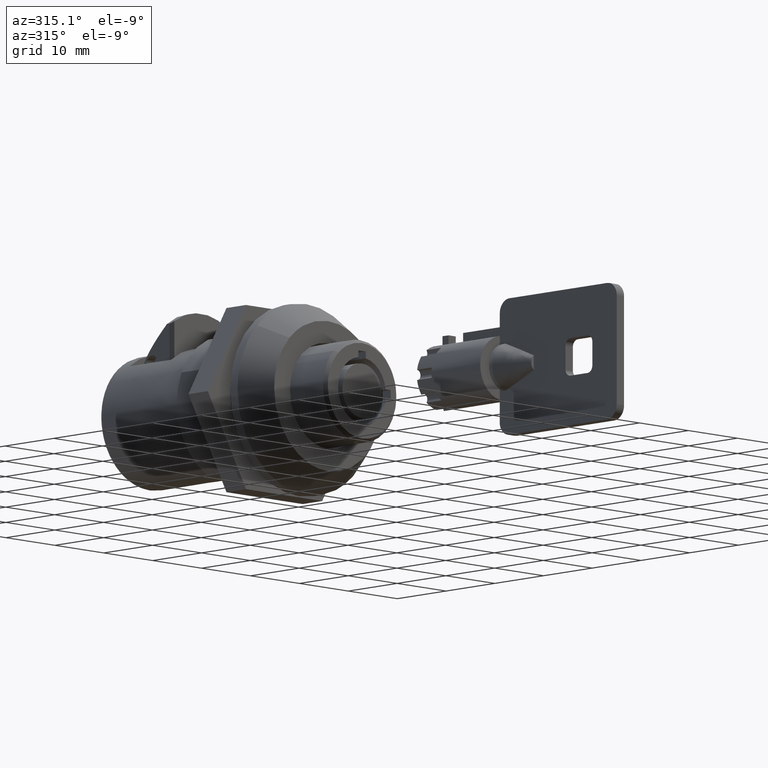
[diagram: clean part render]
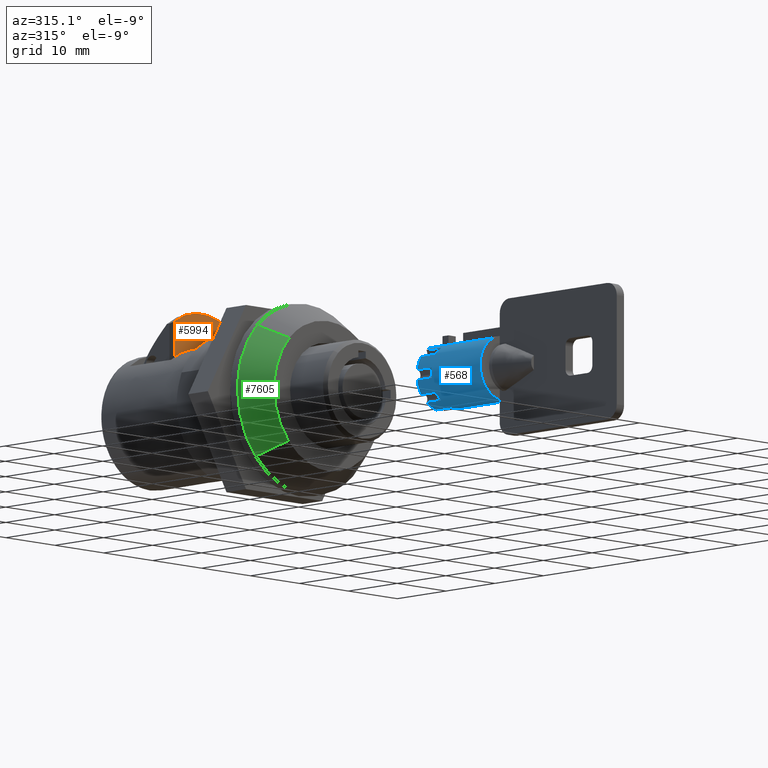
[diagram: same view with three faces highlighted in distinct colors, each labeled with its STEP entity id]
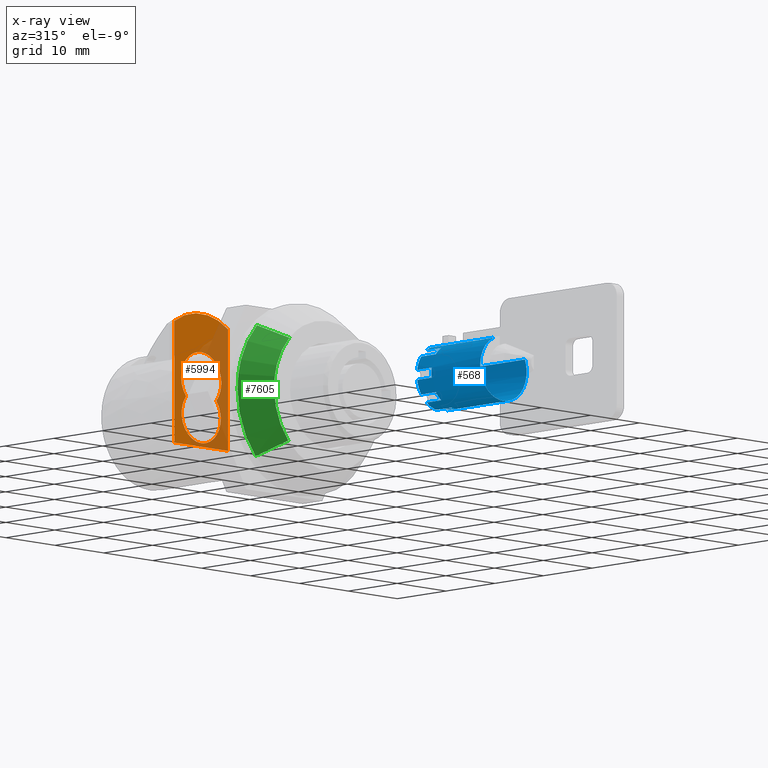
[diagram: x-ray of the same camera — body ghosted, the three highlighted faces saturated]
A machine part, auxiliary view with three faces highlighted in distinct colors.
The next image is the same camera in x-ray (body ghosted, the three faces saturated) — at least one of them is partly hidden behind the body in this view.
Their STEP definitions:

[orange] entity #5994 — the highlighted face is a freeform B-spline surface patch.
#3525=CARTESIAN_POINT('',(20.000000000008079,-4.059067700204118,4.664007475797704));
#3526=VERTEX_POINT('',#3525);
#3527=CARTESIAN_POINT('',(20.0,-3.084624964136685,2.546583756844490));
#3528=VERTEX_POINT('',#3527);
#3529=CARTESIAN_POINT('',(20.000000000008079,-4.059067700204118,4.664007475797704));
#3530=CARTESIAN_POINT('',(20.000000000006938,-4.006518445684709,4.298450837290671));
#3531=CARTESIAN_POINT('',(20.000000000004398,-3.787993506717510,3.534047687366308));
#3532=CARTESIAN_POINT('',(20.000000000001510,-3.360616583828423,2.861238851095451));
#3533=CARTESIAN_POINT('',(20.0,-3.084624964136685,2.546583756844490));
#3534=B_SPLINE_CURVE_WITH_KNOTS('',3,(#3529,#3530,#3531,#3532,#3533),.UNSPECIFIED.,.F.,.U.,(4,1,4),(0.000000061713878,1.107925928226118,2.363505146299601),.UNSPECIFIED.);
#3535=EDGE_CURVE('',#3526,#3528,#3534,.T.);
#3594=CARTESIAN_POINT('',(20.0,-2.834937529812149,8.211491115401401));
#3595=VERTEX_POINT('',#3594);
#3601=CARTESIAN_POINT('',(20.0,-0.001722810071820,9.348623928825074));
#3602=VERTEX_POINT('',#3601);
#3603=CARTESIAN_POINT('',(20.0,-0.001722810071820,9.348623928825074));
#3604=CARTESIAN_POINT('',(20.0,-0.555758693512724,9.349161258835824));
#3605=CARTESIAN_POINT('',(20.000000000000011,-1.597897432067037,9.133540506177619));
#3606=CARTESIAN_POINT('',(19.999999999999989,-2.481913399508175,8.549632453860577));
#3607=CARTESIAN_POINT('',(20.0,-2.834937529812149,8.211491115401401));
#3608=B_SPLINE_CURVE_WITH_KNOTS('',3,(#3603,#3604,#3605,#3606,#3607),.UNSPECIFIED.,.F.,.U.,(4,1,4),(0.000000119670092,1.661875428375270,3.128298061002914),.UNSPECIFIED.);
#3609=EDGE_CURVE('',#3602,#3595,#3608,.T.);
#3611=CARTESIAN_POINT('',(20.0,3.083691446851095,2.547714085335480));
#3612=VERTEX_POINT('',#3611);
#3613=CARTESIAN_POINT('',(20.0,3.083691446851095,2.547714085335480));
#3614=CARTESIAN_POINT('',(20.0,3.325388381986121,2.823605911143285));
#3615=CARTESIAN_POINT('',(19.999999999999972,3.734003285499123,3.440783314589810));
#3616=CARTESIAN_POINT('',(20.000000000000021,4.064362233551162,4.449005191029077));
#3617=CARTESIAN_POINT('',(19.999999999999972,4.126024913806971,5.382456505010598));
#3618=CARTESIAN_POINT('',(20.000000000000050,3.982769741961369,6.403584288525997));
#3619=CARTESIAN_POINT('',(19.999999999999918,3.539410604054659,7.454991706989893));
#3620=CARTESIAN_POINT('',(20.0,2.641144872643446,8.476919370692055));
#3621=CARTESIAN_POINT('',(20.000000000000028,1.440779027249715,9.176289401769926));
#3622=CARTESIAN_POINT('',(19.999999999999890,0.487345570169842,9.349069575095850));
#3623=CARTESIAN_POINT('',(20.0,-0.001722810071820,9.348623928825074));
#3624=B_SPLINE_CURVE_WITH_KNOTS('',3,(#3613,#3614,#3615,#3616,#3617,#3618,#3619,#3620,#3621,#3622,#3623),.UNSPECIFIED.,.F.,.U.,(4,1,1,1,1,1,1,1,4),(0.000000924180883,1.100357205743284,2.200718093231213,3.154425475815215,3.887967226812574,5.281615482665549,6.528774306501804,7.922647305842653,9.389737657902042),.UNSPECIFIED.);
#3625=EDGE_CURVE('',#3612,#3602,#3624,.T.);
#3655=CARTESIAN_POINT('',(20.0,-2.834937529812149,8.211491115401401));
#3656=CARTESIAN_POINT('',(20.000000000001450,-3.275919475598765,7.791086441758169));
#3657=CARTESIAN_POINT('',(20.000000000003819,-3.802817669776910,6.992227120761938));
#3658=CARTESIAN_POINT('',(20.000000000006281,-4.117604811932492,5.722066406708130));
#3659=CARTESIAN_POINT('',(20.000000000007681,-4.111291728674690,5.025698033227866));
#3660=CARTESIAN_POINT('',(20.000000000008079,-4.059067700204118,4.664007475797704));
#3661=B_SPLINE_CURVE_WITH_KNOTS('',3,(#3655,#3656,#3657,#3658,#3659,#3660),.UNSPECIFIED.,.F.,.U.,(4,1,1,4),(0.000000184069394,1.827232484496721,2.801712799471384,3.898039169611026),.UNSPECIFIED.);
#3662=EDGE_CURVE('',#3595,#3526,#3661,.T.);
#3709=CARTESIAN_POINT('',(20.000000000019160,-3.259185341339177,-2.318989200233620));
#3710=VERTEX_POINT('',#3709);
#3711=CARTESIAN_POINT('',(20.0,-3.084624964136685,2.546583756844490));
#3712=CARTESIAN_POINT('',(20.000000000002419,-3.397368393411713,2.168392273333283));
#3713=CARTESIAN_POINT('',(20.000000000006921,-3.840324424168417,1.367858538956685));
#3714=CARTESIAN_POINT('',(20.000000000012712,-4.067487936679370,0.035472125699857));
#3715=CARTESIAN_POINT('',(20.000000000016978,-3.879753495897507,-1.221512854584257));
#3716=CARTESIAN_POINT('',(20.000000000018531,-3.496392656802305,-1.985879951677433));
#3717=CARTESIAN_POINT('',(20.000000000019160,-3.259185341339177,-2.318989200233620));
#3718=B_SPLINE_CURVE_WITH_KNOTS('',3,(#3711,#3712,#3713,#3714,#3715,#3716,#3717),.UNSPECIFIED.,.F.,.U.,(4,1,1,1,4),(0.000000401513548,1.472165256970169,2.698865304195949,4.007536470345093,5.234329321358044),.UNSPECIFIED.);
#3719=EDGE_CURVE('',#3528,#3710,#3718,.T.);
#3733=CARTESIAN_POINT('',(20.0,2.679797957906777,-2.969626728193181));
#3734=VERTEX_POINT('',#3733);
#3735=CARTESIAN_POINT('',(20.0,2.679797957906777,-2.969626728193181));
#3736=CARTESIAN_POINT('',(19.999999999999979,2.916022212787964,-2.756515265710290));
#3737=CARTESIAN_POINT('',(19.999999999999961,3.379468010489344,-2.225275000254970));
#3738=CARTESIAN_POINT('',(20.000000000000060,3.888062148983860,-1.185852280281417));
#3739=CARTESIAN_POINT('',(20.000000000000028,4.050739661647715,-0.068508220358955));
#3740=CARTESIAN_POINT('',(19.999999999999869,3.876785133534348,1.264309133581721));
#3741=CARTESIAN_POINT('',(20.000000000000110,3.469716037481187,2.082180569764871));
#3742=CARTESIAN_POINT('',(20.0,3.083691446851095,2.547714085335480));
#3743=B_SPLINE_CURVE_WITH_KNOTS('',3,(#3735,#3736,#3737,#3738,#3739,#3740,#3741,#3742),.UNSPECIFIED.,.F.,.U.,(4,1,1,1,1,4),(0.000000500625762,0.954489386207447,2.099937426001804,3.436174874064488,4.295229988086652,6.108797276253971),.UNSPECIFIED.);
#3744=EDGE_CURVE('',#3734,#3612,#3743,.T.);
#3827=CARTESIAN_POINT('',(20.0,0.000740766560139,-3.999999931408227));
#3828=VERTEX_POINT('',#3827);
#3829=CARTESIAN_POINT('',(20.000000000019160,-3.259185341339177,-2.318989200233620));
#3830=CARTESIAN_POINT('',(20.000000000017391,-2.960435416880810,-2.739814375605717));
#3831=CARTESIAN_POINT('',(20.000000000013781,-2.343698524126548,-3.323344595747456));
#3832=CARTESIAN_POINT('',(20.000000000007010,-1.189838210157855,-3.875502243712609));
#3833=CARTESIAN_POINT('',(20.000000000002551,-0.435883778516267,-4.000315248254997));
#3834=CARTESIAN_POINT('',(20.0,0.000740766560139,-3.999999931408227));
#3835=B_SPLINE_CURVE_WITH_KNOTS('',3,(#3829,#3830,#3831,#3832,#3833,#3834),.UNSPECIFIED.,.F.,.U.,(4,1,1,4),(0.000000181313491,1.548012916949311,2.500546169509617,3.810392633242685),.UNSPECIFIED.);
#3836=EDGE_CURVE('',#3710,#3828,#3835,.T.);
#3860=CARTESIAN_POINT('',(20.0,0.000740766560139,-3.999999931408227));
#3861=CARTESIAN_POINT('',(20.000000000000028,0.459516786573455,-4.000235146860546));
#3862=CARTESIAN_POINT('',(19.999999999999950,1.437830459139048,-3.829418216854595));
#3863=CARTESIAN_POINT('',(20.000000000000021,2.294163984317915,-3.318407610304834));
#3864=CARTESIAN_POINT('',(20.0,2.679797957906777,-2.969626728193181));
#3865=B_SPLINE_CURVE_WITH_KNOTS('',3,(#3860,#3861,#3862,#3863,#3864),.UNSPECIFIED.,.F.,.U.,(4,1,4),(0.000000125273923,1.376235907093768,2.935886568220497),.UNSPECIFIED.);
#3866=EDGE_CURVE('',#3828,#3734,#3865,.T.);
#5271=CARTESIAN_POINT('',(20.0,-5.500961797166339,13.299245093504281));
#5272=VERTEX_POINT('',#5271);
#5280=CARTESIAN_POINT('',(20.0,-5.500961797166211,-4.501376000548020));
#5281=VERTEX_POINT('',#5280);
#5282=CARTESIAN_POINT('',(20.0,-5.500961797166211,-4.501376000548020));
#5283=CARTESIAN_POINT('',(20.0,-5.500961797166339,13.299245093504281));
#5284=QUASI_UNIFORM_CURVE('',1,(#5282,#5283),.UNSPECIFIED.,.F.,.U.);
#5285=EDGE_CURVE('',#5281,#5272,#5284,.T.);
#5307=CARTESIAN_POINT('',(20.0,5.500961797166211,-4.501376000548020));
#5308=VERTEX_POINT('',#5307);
#5316=CARTESIAN_POINT('',(20.0,5.500961797166330,13.297930600776439));
#5317=VERTEX_POINT('',#5316);
#5318=CARTESIAN_POINT('',(20.0,5.500961797166330,13.297930600776439));
#5319=CARTESIAN_POINT('',(20.0,5.500961797166211,-4.501376000548020));
#5320=QUASI_UNIFORM_CURVE('',1,(#5318,#5319),.UNSPECIFIED.,.F.,.U.);
#5321=EDGE_CURVE('',#5317,#5308,#5320,.T.);
#5534=CARTESIAN_POINT('',(20.0,5.500961797166211,-4.501376000548020));
#5535=CARTESIAN_POINT('',(20.0,-5.500961797166211,-4.501376000548020));
#5536=QUASI_UNIFORM_CURVE('',1,(#5534,#5535),.UNSPECIFIED.,.F.,.U.);
#5537=EDGE_CURVE('',#5308,#5281,#5536,.T.);
#5912=CARTESIAN_POINT('',(20.0,5.500961797166330,13.297930600776439));
#5913=CARTESIAN_POINT('',(20.0,4.546355236707845,13.951542444434830));
#5914=CARTESIAN_POINT('',(20.000000000000028,2.796364924966232,14.734688976954640));
#5915=CARTESIAN_POINT('',(19.999999999999989,0.062894217966052,15.095448765617069));
#5916=CARTESIAN_POINT('',(20.000000000000011,-2.683148565405111,14.786070600679130));
#5917=CARTESIAN_POINT('',(20.000000000000021,-4.546194069523659,13.952555765031869));
#5918=CARTESIAN_POINT('',(20.0,-5.500961797166339,13.299245093504281));
#5919=B_SPLINE_CURVE_WITH_KNOTS('',3,(#5912,#5913,#5914,#5915,#5916,#5917,#5918),.UNSPECIFIED.,.F.,.U.,(4,1,1,1,4),(0.000000185797989,3.470395005857531,5.662263324490153,8.219352465270212,11.689747285329769),.UNSPECIFIED.);
#5920=EDGE_CURVE('',#5317,#5272,#5919,.T.);
#5973=CARTESIAN_POINT('',(20.0,-6.050507859379394,-5.475402466015447));
#5974=CARTESIAN_POINT('',(20.0,6.050508154473970,-5.475402466015447));
#5975=CARTESIAN_POINT('',(20.0,-6.050507859379394,15.972677244240449));
#5976=CARTESIAN_POINT('',(20.0,6.050508154473970,15.972677244240449));
#5977=B_SPLINE_SURFACE_WITH_KNOTS('',1,1,((#5973,#5975),(#5974,#5976)),.UNSPECIFIED.,.F.,.F.,.U.,(2,2),(2,2),(0.0,12.101016013853361),(0.0,21.448079710255900),.UNSPECIFIED.);
#5978=ORIENTED_EDGE('',*,*,#5920,.F.);
#5979=ORIENTED_EDGE('',*,*,#5321,.T.);
#5980=ORIENTED_EDGE('',*,*,#5537,.T.);
#5981=ORIENTED_EDGE('',*,*,#5285,.T.);
#5982=EDGE_LOOP('',(#5978,#5979,#5980,#5981));
#5983=FACE_OUTER_BOUND('',#5982,.T.);
#5984=ORIENTED_EDGE('',*,*,#3625,.T.);
#5985=ORIENTED_EDGE('',*,*,#3609,.T.);
#5986=ORIENTED_EDGE('',*,*,#3662,.T.);
#5987=ORIENTED_EDGE('',*,*,#3535,.T.);
#5988=ORIENTED_EDGE('',*,*,#3719,.T.);
#5989=ORIENTED_EDGE('',*,*,#3836,.T.);
#5990=ORIENTED_EDGE('',*,*,#3866,.T.);
#5991=ORIENTED_EDGE('',*,*,#3744,.T.);
#5992=EDGE_LOOP('',(#5984,#5985,#5986,#5987,#5988,#5989,#5990,#5991));
#5993=FACE_BOUND('',#5992,.T.);
#5994=ADVANCED_FACE('',(#5983,#5993),#5977,.F.);

[blue] entity #568 — the highlighted face is a freeform B-spline surface patch.
#287=CARTESIAN_POINT('',(-218.674999999999930,2.059428388645782,4.280333481405259));
#288=CARTESIAN_POINT('',(-218.674999999999930,6.101576035733411,2.335505198358301));
#289=CARTESIAN_POINT('',(-218.675000000000010,4.391110787881844,-1.811255379163328));
#290=CARTESIAN_POINT('',(-218.674999999999980,2.579855408718631,-6.202366167045171));
#291=CARTESIAN_POINT('',(-218.675000000000010,-1.811255379163214,-4.391110787881957));
#292=CARTESIAN_POINT('',(-218.674999999999980,-6.202366167045057,-2.579855408718744));
#293=CARTESIAN_POINT('',(-218.675000000000010,-4.391110787881844,1.811255379163100));
#294=CARTESIAN_POINT('',(-232.333125000000110,2.059428388645782,4.280333481405259));
#295=CARTESIAN_POINT('',(-232.333125000000110,6.101576035733411,2.335505198358301));
#296=CARTESIAN_POINT('',(-232.333125000000110,4.391110787881844,-1.811255379163328));
#297=CARTESIAN_POINT('',(-232.333125000000140,2.579855408718631,-6.202366167045171));
#298=CARTESIAN_POINT('',(-232.333125000000110,-1.811255379163214,-4.391110787881957));
#299=CARTESIAN_POINT('',(-232.333125000000140,-6.202366167045057,-2.579855408718744));
#300=CARTESIAN_POINT('',(-232.333125000000110,-4.391110787881844,1.811255379163100));
#308=(BOUNDED_SURFACE()B_SPLINE_SURFACE(2,1,((#287,#294),(#288,#295),(#289,#296),(#290,#297),(#291,#298),(#292,#299),(#293,#300)),.UNSPECIFIED.,.F.,.F.,.U.)B_SPLINE_SURFACE_WITH_KNOTS((3,2,2,3),(2,2),(0.0,7.555255377685251,15.425313062774061,23.295370747862862),(0.0,13.658125000000190),.UNSPECIFIED.)GEOMETRIC_REPRESENTATION_ITEM()RATIONAL_B_SPLINE_SURFACE(((0.977505800795127,0.977505800795127),(0.718822509939086,0.718822509939086),(1.0,1.0),(0.707106781186548,0.707106781186548),(1.0,1.0),(0.707106781186548,0.707106781186548),(1.0,1.0)))REPRESENTATION_ITEM('')SURFACE());
#309=CARTESIAN_POINT('',(-232.000000000000110,2.059428148010018,4.280333597184102));
#310=VERTEX_POINT('',#309);
#311=CARTESIAN_POINT('',(-232.0,0.750000000000028,-4.690415759823541));
#312=VERTEX_POINT('',#311);
#313=CARTESIAN_POINT('',(-232.000000000000110,2.059428148010018,4.280333597184102));
#314=CARTESIAN_POINT('',(-232.000000000000110,2.511624904800988,4.063103635185843));
#315=CARTESIAN_POINT('',(-232.000000000000110,3.215398349863905,3.573857598222211));
#316=CARTESIAN_POINT('',(-232.000000000000200,3.984405521361067,2.654612901308511));
#317=CARTESIAN_POINT('',(-231.999999999999690,4.420260967918887,1.814805434888492));
#318=CARTESIAN_POINT('',(-232.000000000000910,4.726863736658491,0.790335074428173));
#319=CARTESIAN_POINT('',(-231.999999999998690,4.806940806586159,-0.475104740452636));
#320=CARTESIAN_POINT('',(-232.000000000002700,4.447500644720526,-1.860176768895778));
#321=CARTESIAN_POINT('',(-231.999999999997410,3.752272925631483,-2.991399417831903));
#322=CARTESIAN_POINT('',(-232.000000000002100,2.892938510859048,-3.828791461573493));
#323=CARTESIAN_POINT('',(-231.999999999999200,1.880672559322987,-4.414854020467449));
#324=CARTESIAN_POINT('',(-232.000000000000310,1.121519804786312,-4.631090128396130));
#325=CARTESIAN_POINT('',(-232.0,0.750000000000028,-4.690415759823541));
#326=B_SPLINE_CURVE_WITH_KNOTS('',3,(#313,#314,#315,#316,#317,#318,#319,#320,#321,#322,#323,#324,#325),.UNSPECIFIED.,.F.,.U.,(4,1,1,1,1,1,1,1,1,1,4),(0.000001198489374,1.504899044783379,2.539577846504471,3.574233094150086,4.326720036264612,5.737612539851155,7.336495213831534,8.559303893957871,9.688059447954586,10.910821253449649,12.039501418686781),.UNSPECIFIED.);
#327=EDGE_CURVE('',#310,#312,#326,.T.);
#328=ORIENTED_EDGE('',*,*,#327,.F.);
#329=CARTESIAN_POINT('',(-219.0,2.059428546056810,4.280333405668925));
#330=VERTEX_POINT('',#329);
#331=CARTESIAN_POINT('',(-219.0,2.059428546056810,4.280333405668925));
#332=CARTESIAN_POINT('',(-232.000000000000110,2.059428148010018,4.280333597184102));
#333=QUASI_UNIFORM_CURVE('',1,(#331,#332),.UNSPECIFIED.,.F.,.U.);
#334=EDGE_CURVE('',#330,#310,#333,.T.);
#335=ORIENTED_EDGE('',*,*,#334,.F.);
#336=CARTESIAN_POINT('',(-219.0,2.788214234014050,3.845563857907005));
#337=VERTEX_POINT('',#336);
#338=CARTESIAN_POINT('',(-219.0,2.059428546056810,4.280333405668925));
#339=CARTESIAN_POINT('',(-219.000000000000110,2.314683334598644,4.157545636696500));
#340=CARTESIAN_POINT('',(-218.999999999999890,2.558904181257821,4.011838446172001));
#341=CARTESIAN_POINT('',(-219.0,2.788214234014050,3.845563857907005));
#342=B_SPLINE_CURVE_WITH_KNOTS('',3,(#338,#339,#340,#341),.UNSPECIFIED.,.F.,.U.,(4,4),(6.925271E-009,0.849768739884296),.UNSPECIFIED.);
#343=EDGE_CURVE('',#330,#337,#342,.T.);
#344=ORIENTED_EDGE('',*,*,#343,.T.);
#345=CARTESIAN_POINT('',(-222.0,2.788214234014045,3.845563857907000));
#346=VERTEX_POINT('',#345);
#347=CARTESIAN_POINT('',(-222.0,2.788214234014045,3.845563857907000));
#348=CARTESIAN_POINT('',(-219.0,2.788214234014050,3.845563857907005));
#349=QUASI_UNIFORM_CURVE('',1,(#347,#348),.UNSPECIFIED.,.F.,.U.);
#350=EDGE_CURVE('',#346,#337,#349,.T.);
#351=ORIENTED_EDGE('',*,*,#350,.F.);
#352=CARTESIAN_POINT('',(-222.0,3.845563857907115,2.788214234013935));
#353=VERTEX_POINT('',#352);
#354=CARTESIAN_POINT('',(-222.0,2.788214234014045,3.845563857907000));
#355=CARTESIAN_POINT('',(-221.999999999999890,3.193529399071767,3.551864125360638));
#356=CARTESIAN_POINT('',(-222.000000000000600,3.551894797574320,3.193559035789348));
#357=CARTESIAN_POINT('',(-222.0,3.845563857907115,2.788214234013935));
#358=B_SPLINE_CURVE_WITH_KNOTS('',3,(#354,#355,#356,#357),.UNSPECIFIED.,.F.,.U.,(4,4),(0.000000022078456,1.501586976794032),.UNSPECIFIED.);
#359=EDGE_CURVE('',#346,#353,#358,.T.);
#360=ORIENTED_EDGE('',*,*,#359,.T.);
#361=CARTESIAN_POINT('',(-219.0,3.845563857907115,2.788214234013935));
#362=VERTEX_POINT('',#361);
#363=CARTESIAN_POINT('',(-222.0,3.845563857907115,2.788214234013935));
#364=CARTESIAN_POINT('',(-219.0,3.845563857907115,2.788214234013935));
#365=QUASI_UNIFORM_CURVE('',1,(#363,#364),.UNSPECIFIED.,.F.,.U.);
#366=EDGE_CURVE('',#353,#362,#365,.T.);
#367=ORIENTED_EDGE('',*,*,#366,.T.);
#368=CARTESIAN_POINT('',(-219.0,4.690789473684210,0.747659089139720));
#369=VERTEX_POINT('',#368);
#370=CARTESIAN_POINT('',(-219.0,3.845563857907115,2.788214234013935));
#371=CARTESIAN_POINT('',(-219.0,4.282568348857986,2.187053820268130));
#372=CARTESIAN_POINT('',(-219.000000000000200,4.574445481345987,1.481643331467325));
#373=CARTESIAN_POINT('',(-219.0,4.690789473684210,0.747659089139720));
#374=B_SPLINE_CURVE_WITH_KNOTS('',3,(#370,#371,#372,#373),.UNSPECIFIED.,.F.,.U.,(4,4),(0.000000030363641,2.229158587030656),.UNSPECIFIED.);
#375=EDGE_CURVE('',#362,#369,#374,.T.);
#376=ORIENTED_EDGE('',*,*,#375,.T.);
#377=CARTESIAN_POINT('',(-222.0,4.690789473684210,0.747659089139721));
#378=VERTEX_POINT('',#377);
#379=CARTESIAN_POINT('',(-222.0,4.690789473684210,0.747659089139721));
#380=CARTESIAN_POINT('',(-219.0,4.690789473684210,0.747659089139720));
#381=QUASI_UNIFORM_CURVE('',1,(#379,#380),.UNSPECIFIED.,.F.,.U.);
#382=EDGE_CURVE('',#378,#369,#381,.T.);
#383=ORIENTED_EDGE('',*,*,#382,.F.);
#384=CARTESIAN_POINT('',(-222.0,4.690789473684210,-0.747659089139949));
#385=VERTEX_POINT('',#384);
#386=CARTESIAN_POINT('',(-222.0,4.690789473684210,0.747659089139721));
#387=CARTESIAN_POINT('',(-222.000000000000400,4.769706255542966,0.253382079700649));
#388=CARTESIAN_POINT('',(-221.999999999999290,4.769763764859276,-0.253382616185265));
#389=CARTESIAN_POINT('',(-222.0,4.690789473684210,-0.747659089139949));
#390=B_SPLINE_CURVE_WITH_KNOTS('',3,(#386,#387,#388,#389),.UNSPECIFIED.,.F.,.U.,(4,4),(0.000000022078468,1.501586976794035),.UNSPECIFIED.);
#391=EDGE_CURVE('',#378,#385,#390,.T.);
#392=ORIENTED_EDGE('',*,*,#391,.T.);
#393=CARTESIAN_POINT('',(-219.0,4.690789473684210,-0.747659089139949));
#394=VERTEX_POINT('',#393);
#395=CARTESIAN_POINT('',(-222.0,4.690789473684210,-0.747659089139949));
#396=CARTESIAN_POINT('',(-219.0,4.690789473684210,-0.747659089139949));
#397=QUASI_UNIFORM_CURVE('',1,(#395,#396),.UNSPECIFIED.,.F.,.U.);
#398=EDGE_CURVE('',#385,#394,#397,.T.);
#399=ORIENTED_EDGE('',*,*,#398,.T.);
#400=CARTESIAN_POINT('',(-219.0,3.845563857907115,-2.788214234014161));
#401=VERTEX_POINT('',#400);
#402=CARTESIAN_POINT('',(-219.0,4.690789473684210,-0.747659089139949));
#403=CARTESIAN_POINT('',(-219.000000000000200,4.574452803778481,-1.481651864793028));
#404=CARTESIAN_POINT('',(-218.999999999999890,4.282563951446995,-2.187044559830276));
#405=CARTESIAN_POINT('',(-219.0,3.845563857907115,-2.788214234014161));
#406=B_SPLINE_CURVE_WITH_KNOTS('',3,(#402,#403,#404,#405),.UNSPECIFIED.,.F.,.U.,(4,4),(0.000000030363684,2.229158587030653),.UNSPECIFIED.);
#407=EDGE_CURVE('',#394,#401,#406,.T.);
#408=ORIENTED_EDGE('',*,*,#407,.T.);
#409=CARTESIAN_POINT('',(-222.0,3.845563857907115,-2.788214234014161));
#410=VERTEX_POINT('',#409);
#411=CARTESIAN_POINT('',(-222.0,3.845563857907115,-2.788214234014161));
#412=CARTESIAN_POINT('',(-219.0,3.845563857907115,-2.788214234014161));
#413=QUASI_UNIFORM_CURVE('',1,(#411,#412),.UNSPECIFIED.,.F.,.U.);
#414=EDGE_CURVE('',#410,#401,#413,.T.);
#415=ORIENTED_EDGE('',*,*,#414,.F.);
#416=CARTESIAN_POINT('',(-222.0,2.788214234014045,-3.845563857907230));
#417=VERTEX_POINT('',#416);
#418=CARTESIAN_POINT('',(-222.0,3.845563857907115,-2.788214234014161));
#419=CARTESIAN_POINT('',(-222.000000000000310,3.551900868929189,-3.193563736650692));
#420=CARTESIAN_POINT('',(-221.999999999999800,3.193523450774746,-3.551859824350006));
#421=CARTESIAN_POINT('',(-222.0,2.788214234014045,-3.845563857907230));
#422=B_SPLINE_CURVE_WITH_KNOTS('',3,(#418,#419,#420,#421),.UNSPECIFIED.,.F.,.U.,(4,4),(0.000000022078489,1.501586976794035),.UNSPECIFIED.);
#423=EDGE_CURVE('',#410,#417,#422,.T.);
#424=ORIENTED_EDGE('',*,*,#423,.T.);
#425=CARTESIAN_POINT('',(-219.0,2.788214234014045,-3.845563857907230));
#426=VERTEX_POINT('',#425);
#427=CARTESIAN_POINT('',(-222.0,2.788214234014045,-3.845563857907230));
#428=CARTESIAN_POINT('',(-219.0,2.788214234014045,-3.845563857907230));
#429=QUASI_UNIFORM_CURVE('',1,(#427,#428),.UNSPECIFIED.,.F.,.U.);
#430=EDGE_CURVE('',#417,#426,#429,.T.);
#431=ORIENTED_EDGE('',*,*,#430,.T.);
#432=CARTESIAN_POINT('',(-219.0,0.747659089139733,-4.690789473684340));
#433=VERTEX_POINT('',#432);
#434=CARTESIAN_POINT('',(-219.0,2.788214234014045,-3.845563857907230));
#435=CARTESIAN_POINT('',(-219.000000000000200,2.186937370652719,-4.282302384990087));
#436=CARTESIAN_POINT('',(-218.999999999999200,1.481756010231769,-4.574707447789386));
#437=CARTESIAN_POINT('',(-219.0,0.747659089139733,-4.690789473684340));
#438=B_SPLINE_CURVE_WITH_KNOTS('',3,(#434,#435,#436,#437),.UNSPECIFIED.,.F.,.U.,(4,4),(0.000000030363678,2.229158587030754),.UNSPECIFIED.);
#439=EDGE_CURVE('',#426,#433,#438,.T.);
#440=ORIENTED_EDGE('',*,*,#439,.T.);
#441=CARTESIAN_POINT('',(-222.0,0.747659089139721,-4.690789473684210));
#442=VERTEX_POINT('',#441);
#443=CARTESIAN_POINT('',(-222.0,0.747659089139721,-4.690789473684210));
#444=CARTESIAN_POINT('',(-219.0,0.747659089139733,-4.690789473684340));
#445=QUASI_UNIFORM_CURVE('',1,(#443,#444),.UNSPECIFIED.,.F.,.U.);
#446=EDGE_CURVE('',#442,#433,#445,.T.);
#447=ORIENTED_EDGE('',*,*,#446,.F.);
#448=CARTESIAN_POINT('',(-222.0,-0.747659089139949,-4.690789473684210));
#449=VERTEX_POINT('',#448);
#450=CARTESIAN_POINT('',(-222.0,0.747659089139721,-4.690789473684210));
#451=CARTESIAN_POINT('',(-222.0,0.253382141939330,-4.769712560873716));
#452=CARTESIAN_POINT('',(-222.000000000000800,-0.253381710880169,-4.769758341883161));
#453=CARTESIAN_POINT('',(-222.0,-0.747659089139949,-4.690789473684210));
#454=B_SPLINE_CURVE_WITH_KNOTS('',3,(#450,#451,#452,#453),.UNSPECIFIED.,.F.,.U.,(4,4),(0.000000022078459,1.501586976794035),.UNSPECIFIED.);
#455=EDGE_CURVE('',#442,#449,#454,.T.);
#456=ORIENTED_EDGE('',*,*,#455,.T.);
#457=CARTESIAN_POINT('',(-219.0,-0.747659089139949,-4.690789473684210));
#458=VERTEX_POINT('',#457);
#459=CARTESIAN_POINT('',(-222.0,-0.747659089139949,-4.690789473684210));
#460=CARTESIAN_POINT('',(-219.0,-0.747659089139949,-4.690789473684210));
#461=QUASI_UNIFORM_CURVE('',1,(#459,#460),.UNSPECIFIED.,.F.,.U.);
#462=EDGE_CURVE('',#449,#458,#461,.T.);
#463=ORIENTED_EDGE('',*,*,#462,.T.);
#464=CARTESIAN_POINT('',(-219.0,-2.788214234014195,-3.845563857907120));
#465=VERTEX_POINT('',#464);
#466=CARTESIAN_POINT('',(-219.0,-0.747659089139949,-4.690789473684210));
#467=CARTESIAN_POINT('',(-219.000000000000200,-1.481643331467576,-4.574445481346056));
#468=CARTESIAN_POINT('',(-219.000000000000200,-2.187053820268420,-4.282568348858059));
#469=CARTESIAN_POINT('',(-219.0,-2.788214234014195,-3.845563857907120));
#470=B_SPLINE_CURVE_WITH_KNOTS('',3,(#466,#467,#468,#469),.UNSPECIFIED.,.F.,.U.,(4,4),(0.000000030363648,2.229158587030701),.UNSPECIFIED.);
#471=EDGE_CURVE('',#458,#465,#470,.T.);
#472=ORIENTED_EDGE('',*,*,#471,.T.);
#473=CARTESIAN_POINT('',(-222.0,-2.788214234014130,-3.845563857907035));
#474=VERTEX_POINT('',#473);
#475=CARTESIAN_POINT('',(-222.0,-2.788214234014130,-3.845563857907035));
#476=CARTESIAN_POINT('',(-219.0,-2.788214234014195,-3.845563857907120));
#477=QUASI_UNIFORM_CURVE('',1,(#475,#476),.UNSPECIFIED.,.F.,.U.);
#478=EDGE_CURVE('',#474,#465,#477,.T.);
#479=ORIENTED_EDGE('',*,*,#478,.F.);
#480=CARTESIAN_POINT('',(-222.0,-3.845563857907200,-2.788214234013965));
#481=VERTEX_POINT('',#480);
#482=CARTESIAN_POINT('',(-222.0,-2.788214234014130,-3.845563857907035));
#483=CARTESIAN_POINT('',(-221.999999999999690,-3.193558857800464,-3.551895135792876));
#484=CARTESIAN_POINT('',(-222.000000000000310,-3.551864372198325,-3.193529206605239));
#485=CARTESIAN_POINT('',(-222.0,-3.845563857907200,-2.788214234013965));
#486=B_SPLINE_CURVE_WITH_KNOTS('',3,(#482,#483,#484,#485),.UNSPECIFIED.,.F.,.U.,(4,4),(0.000000022078509,1.501586976794036),.UNSPECIFIED.);
#487=EDGE_CURVE('',#474,#481,#486,.T.);
#488=ORIENTED_EDGE('',*,*,#487,.T.);
#489=CARTESIAN_POINT('',(-219.0,-3.845563857907200,-2.788214234013965));
#490=VERTEX_POINT('',#489);
#491=CARTESIAN_POINT('',(-222.0,-3.845563857907200,-2.788214234013965));
#492=CARTESIAN_POINT('',(-219.0,-3.845563857907200,-2.788214234013965));
#493=QUASI_UNIFORM_CURVE('',1,(#491,#492),.UNSPECIFIED.,.F.,.U.);
#494=EDGE_CURVE('',#481,#490,#493,.T.);
#495=ORIENTED_EDGE('',*,*,#494,.T.);
#496=CARTESIAN_POINT('',(-219.0,-4.690789473684210,-0.747659089139948));
#497=VERTEX_POINT('',#496);
#498=CARTESIAN_POINT('',(-219.0,-3.845563857907200,-2.788214234013965));
#499=CARTESIAN_POINT('',(-218.999999999999690,-4.282563468258240,-2.187045557679440));
#500=CARTESIAN_POINT('',(-219.000000000000400,-4.574453743535428,-1.481650855770479));
#501=CARTESIAN_POINT('',(-219.0,-4.690789473684210,-0.747659089139948));
#502=B_SPLINE_CURVE_WITH_KNOTS('',3,(#498,#499,#500,#501),.UNSPECIFIED.,.F.,.U.,(4,4),(0.000000030363641,2.229158587030443),.UNSPECIFIED.);
#503=EDGE_CURVE('',#490,#497,#502,.T.);
#504=ORIENTED_EDGE('',*,*,#503,.T.);
#505=CARTESIAN_POINT('',(-222.0,-4.690789473684210,-0.747659089139948));
#506=VERTEX_POINT('',#505);
#507=CARTESIAN_POINT('',(-222.0,-4.690789473684210,-0.747659089139948));
#508=CARTESIAN_POINT('',(-219.0,-4.690789473684210,-0.747659089139948));
#509=QUASI_UNIFORM_CURVE('',1,(#507,#508),.UNSPECIFIED.,.F.,.U.);
#510=EDGE_CURVE('',#506,#497,#509,.T.);
#511=ORIENTED_EDGE('',*,*,#510,.F.);
#512=CARTESIAN_POINT('',(-222.0,-4.690789473684210,0.747659089139721));
#513=VERTEX_POINT('',#512);
#514=CARTESIAN_POINT('',(-222.0,-4.690789473684210,-0.747659089139948));
#515=CARTESIAN_POINT('',(-222.000000000000110,-4.769705887876914,-0.253380509099427));
#516=CARTESIAN_POINT('',(-222.000000000000110,-4.769765484677881,0.253378533799448));
#517=CARTESIAN_POINT('',(-222.0,-4.690789473684210,0.747659089139721));
#518=B_SPLINE_CURVE_WITH_KNOTS('',3,(#514,#515,#516,#517),.UNSPECIFIED.,.F.,.U.,(4,4),(0.000000022078457,1.501586976794034),.UNSPECIFIED.);
#519=EDGE_CURVE('',#506,#513,#518,.T.);
#520=ORIENTED_EDGE('',*,*,#519,.T.);
#521=CARTESIAN_POINT('',(-219.0,-4.690789473684210,0.747659089139721));
#522=VERTEX_POINT('',#521);
#523=CARTESIAN_POINT('',(-222.0,-4.690789473684210,0.747659089139721));
#524=CARTESIAN_POINT('',(-219.0,-4.690789473684210,0.747659089139721));
#525=QUASI_UNIFORM_CURVE('',1,(#523,#524),.UNSPECIFIED.,.F.,.U.);
#526=EDGE_CURVE('',#513,#522,#525,.T.);
#527=ORIENTED_EDGE('',*,*,#526,.T.);
#528=CARTESIAN_POINT('',(-219.0,-4.391110705914510,1.811255577880300));
#529=VERTEX_POINT('',#528);
#530=CARTESIAN_POINT('',(-219.0,-4.690789473684210,0.747659089139721));
#531=CARTESIAN_POINT('',(-219.000000000000110,-4.632740506611411,1.112253455264972));
#532=CARTESIAN_POINT('',(-219.000000000000110,-4.531913622392908,1.469987449315707));
#533=CARTESIAN_POINT('',(-219.0,-4.391110705914510,1.811255577880300));
#534=B_SPLINE_CURVE_WITH_KNOTS('',3,(#530,#531,#532,#533),.UNSPECIFIED.,.F.,.U.,(4,4),(0.000000012486578,1.107555178566742),.UNSPECIFIED.);
#535=EDGE_CURVE('',#522,#529,#534,.T.);
#536=ORIENTED_EDGE('',*,*,#535,.T.);
#537=CARTESIAN_POINT('',(-232.000000000000110,-4.391110795444835,1.811255360827790));
#538=VERTEX_POINT('',#537);
#539=CARTESIAN_POINT('',(-219.0,-4.391110705914510,1.811255577880300));
#540=CARTESIAN_POINT('',(-232.000000000000110,-4.391110795444835,1.811255360827790));
#541=QUASI_UNIFORM_CURVE('',1,(#539,#540),.UNSPECIFIED.,.F.,.U.);
#542=EDGE_CURVE('',#529,#538,#541,.T.);
#543=ORIENTED_EDGE('',*,*,#542,.T.);
#544=CARTESIAN_POINT('',(-232.0,-0.750000000000028,-4.690415759823541));
#545=VERTEX_POINT('',#544);
#546=CARTESIAN_POINT('',(-232.0,-0.750000000000028,-4.690415759823541));
#547=CARTESIAN_POINT('',(-232.000000000000510,-1.278790717907193,-4.606246853284702));
#548=CARTESIAN_POINT('',(-231.999999999999400,-2.135511600755396,-4.314356336744631));
#549=CARTESIAN_POINT('',(-232.000000000000310,-3.276999529785395,-3.517676727590601));
#550=CARTESIAN_POINT('',(-232.000000000000510,-3.998723324658707,-2.649774963916403));
#551=CARTESIAN_POINT('',(-231.999999999999890,-4.489655407808662,-1.643694105987232));
#552=CARTESIAN_POINT('',(-232.000000000000310,-4.740724917100959,-0.688336817782525));
#553=CARTESIAN_POINT('',(-232.000000000001110,-4.778846347835611,0.523441301948147));
#554=CARTESIAN_POINT('',(-231.999999999998690,-4.578520194072278,1.357622050646391));
#555=CARTESIAN_POINT('',(-232.000000000000110,-4.391110795444835,1.811255360827790));
#556=B_SPLINE_CURVE_WITH_KNOTS('',3,(#546,#547,#548,#549,#550,#551,#552,#553,#554,#555),.UNSPECIFIED.,.F.,.U.,(4,1,1,1,1,1,1,4),(0.000000357207561,1.606239348470345,2.677099491318685,4.149527712997003,4.952545059368941,6.023452742339780,7.094314224370050,8.566711101368135),.UNSPECIFIED.);
#557=EDGE_CURVE('',#545,#538,#556,.T.);
#558=ORIENTED_EDGE('',*,*,#557,.F.);
#559=CARTESIAN_POINT('',(-232.0,0.750000000000028,-4.690415759823541));
#560=CARTESIAN_POINT('',(-232.000000000000310,0.254200718727431,-4.769837778171485));
#561=CARTESIAN_POINT('',(-231.999999999999400,-0.254201460169430,-4.769880963920092));
#562=CARTESIAN_POINT('',(-232.0,-0.750000000000028,-4.690415759823541));
#563=B_SPLINE_CURVE_WITH_KNOTS('',3,(#559,#560,#561,#562),.UNSPECIFIED.,.F.,.U.,(4,4),(0.000000022429122,1.506328316612474),.UNSPECIFIED.);
#564=EDGE_CURVE('',#312,#545,#563,.T.);
#565=ORIENTED_EDGE('',*,*,#564,.F.);
#566=EDGE_LOOP('',(#328,#335,#344,#351,#360,#367,#376,#383,#392,#399,#408,#415,#424,#431,#440,#447,#456,#463,#472,#479,#488,#495,#504,#511,#520,#527,#536,#543,#558,#565));
#567=FACE_OUTER_BOUND('',#566,.T.);
#568=ADVANCED_FACE('',(#567),#308,.T.);

[green] entity #7605 — the highlighted face is a freeform B-spline surface patch.
#7410=CARTESIAN_POINT('',(-6.000000401319874,7.883159879585982,7.671751123262862));
#7411=VERTEX_POINT('',#7410);
#7450=CARTESIAN_POINT('',(-5.999999600059690,8.110051540367710,-7.431493049327066));
#7451=VERTEX_POINT('',#7450);
#7461=CARTESIAN_POINT('',(-1.499999645547216,10.321883455776700,-9.458263585102735));
#7462=VERTEX_POINT('',#7461);
#7463=CARTESIAN_POINT('',(-5.999999600059690,8.110051540367710,-7.431493049327066));
#7464=CARTESIAN_POINT('',(-1.499999645547216,10.321883455776700,-9.458263585102735));
#7465=QUASI_UNIFORM_CURVE('',1,(#7463,#7464),.UNSPECIFIED.,.F.,.U.);
#7466=EDGE_CURVE('',#7451,#7462,#7465,.T.);
#7527=CARTESIAN_POINT('',(-1.500000355675242,10.033112888941300,9.764047190630206));
#7528=VERTEX_POINT('',#7527);
#7538=CARTESIAN_POINT('',(-6.000000401319874,7.883159879585982,7.671751123262862));
#7539=CARTESIAN_POINT('',(-1.500000355675242,10.033112888941300,9.764047190630206));
#7540=QUASI_UNIFORM_CURVE('',1,(#7538,#7539),.UNSPECIFIED.,.F.,.U.);
#7541=EDGE_CURVE('',#7411,#7528,#7540,.T.);
#7546=CARTESIAN_POINT('',(-6.112500000000002,8.054754904650716,-7.380823018201189));
#7547=CARTESIAN_POINT('',(-6.112500000000003,15.024860511187843,0.225712483563365));
#7548=CARTESIAN_POINT('',(-6.112500000000002,7.829411871553433,7.619444516864827));
#7549=CARTESIAN_POINT('',(-1.384687499999941,10.378560910609011,-9.510198903829691));
#7550=CARTESIAN_POINT('',(-1.384687499999941,19.359549959581180,0.290830793323662));
#7551=CARTESIAN_POINT('',(-1.384687499999941,10.088206154633607,9.817662977880092));
#7559=(BOUNDED_SURFACE()B_SPLINE_SURFACE(2,1,((#7546,#7549),(#7547,#7550),(#7548,#7551)),.UNSPECIFIED.,.F.,.F.,.U.)B_SPLINE_SURFACE_WITH_KNOTS((3,3),(2,2),(0.0,22.384252107998790),(0.0,5.682123463176496),.UNSPECIFIED.)GEOMETRIC_REPRESENTATION_ITEM()RATIONAL_B_SPLINE_SURFACE(((1.0,1.0),(0.718822509939086,0.718822509939086),(0.977505800795127,0.977505800795127)))REPRESENTATION_ITEM('')SURFACE());
#7560=CARTESIAN_POINT('',(-6.0,10.999999999999449,-0.000003479390154));
#7561=VERTEX_POINT('',#7560);
#7562=CARTESIAN_POINT('',(-6.000000401319874,7.883159879585982,7.671751123262862));
#7563=CARTESIAN_POINT('',(-6.000000364859991,8.561846921893931,6.974772258765678));
#7564=CARTESIAN_POINT('',(-6.000000295549373,9.545961962041696,5.649809940060207));
#7565=CARTESIAN_POINT('',(-6.000000159582957,10.694542034136900,3.050633299555851));
#7566=CARTESIAN_POINT('',(-6.000000062459847,11.000691088700160,1.193997403069313));
#7567=CARTESIAN_POINT('',(-6.0,10.999999999999449,-0.000003479390154));
#7568=B_SPLINE_CURVE_WITH_KNOTS('',3,(#7562,#7563,#7564,#7565,#7566,#7567),.UNSPECIFIED.,.F.,.U.,(4,1,1,4),(0.000000080223394,2.918421860354351,4.908243978025873,8.489941098493276),.UNSPECIFIED.);
#7569=EDGE_CURVE('',#7411,#7561,#7568,.T.);
#7570=ORIENTED_EDGE('',*,*,#7569,.F.);
#7571=ORIENTED_EDGE('',*,*,#7541,.T.);
#7572=CARTESIAN_POINT('',(-1.499999999999942,13.999999999999661,-0.000003083658099));
#7573=VERTEX_POINT('',#7572);
#7574=CARTESIAN_POINT('',(-1.500000355675242,10.033112888941300,9.764047190630206));
#7575=CARTESIAN_POINT('',(-1.500000320427862,10.975555405706990,8.796430640766795));
#7576=CARTESIAN_POINT('',(-1.500000253313143,12.309537227271200,6.953987820958987));
#7577=CARTESIAN_POINT('',(-1.500000131190705,13.671599279764740,3.601464430023089));
#7578=CARTESIAN_POINT('',(-1.500000049203192,14.000503036491210,1.350731745063227));
#7579=CARTESIAN_POINT('',(-1.499999999999942,13.999999999999661,-0.000003083658099));
#7580=B_SPLINE_CURVE_WITH_KNOTS('',3,(#7574,#7575,#7576,#7577,#7578,#7579),.UNSPECIFIED.,.F.,.U.,(4,1,1,4),(0.000000079321959,4.052038483285974,6.753340000753633,10.805378404799921),.UNSPECIFIED.);
#7581=EDGE_CURVE('',#7528,#7573,#7580,.T.);
#7582=ORIENTED_EDGE('',*,*,#7581,.T.);
#7583=CARTESIAN_POINT('',(-1.499999999999942,13.999999999999661,-0.000003083658099));
#7584=CARTESIAN_POINT('',(-1.499999969596159,14.000040298017190,-0.811301498471062));
#7585=CARTESIAN_POINT('',(-1.499999900679755,13.839835710558340,-2.650275349329225));
#7586=CARTESIAN_POINT('',(-1.499999808674222,13.123364347498230,-5.105362568659000));
#7587=CARTESIAN_POINT('',(-1.499999719846672,11.920954710625230,-7.475647809872725));
#7588=CARTESIAN_POINT('',(-1.499999670949332,10.943173871250661,-8.780430518530656));
#7589=CARTESIAN_POINT('',(-1.499999645547216,10.321883455776700,-9.458263585102735));
#7590=B_SPLINE_CURVE_WITH_KNOTS('',3,(#7583,#7584,#7585,#7586,#7587,#7588,#7589),.UNSPECIFIED.,.F.,.U.,(4,1,1,1,4),(0.000000073984516,2.433926353443520,5.516869803038319,7.626308546057215,10.384764459212100),.UNSPECIFIED.);
#7591=EDGE_CURVE('',#7573,#7462,#7590,.T.);
#7592=ORIENTED_EDGE('',*,*,#7591,.T.);
#7593=ORIENTED_EDGE('',*,*,#7466,.F.);
#7594=CARTESIAN_POINT('',(-6.0,10.999999999999449,-0.000003479390154));
#7595=CARTESIAN_POINT('',(-5.999999956545210,11.000150410835261,-0.807458839386992));
#7596=CARTESIAN_POINT('',(-5.999999878790224,10.840129476062939,-2.252262610418693));
#7597=CARTESIAN_POINT('',(-5.999999738732026,10.014990537340910,-4.854753788506984));
#7598=CARTESIAN_POINT('',(-5.999999650616791,8.972193798978550,-6.492066426946470));
#7599=CARTESIAN_POINT('',(-5.999999600059690,8.110051540367710,-7.431493049327066));
#7600=B_SPLINE_CURVE_WITH_KNOTS('',3,(#7594,#7595,#7596,#7597,#7598,#7599),.UNSPECIFIED.,.F.,.U.,(4,1,1,4),(0.000000074336379,2.422347042549758,4.334690758918118,8.159456860464404),.UNSPECIFIED.);
#7601=EDGE_CURVE('',#7561,#7451,#7600,.T.);
#7602=ORIENTED_EDGE('',*,*,#7601,.F.);
#7603=EDGE_LOOP('',(#7570,#7571,#7582,#7592,#7593,#7602));
#7604=FACE_OUTER_BOUND('',#7603,.T.);
#7605=ADVANCED_FACE('',(#7604),#7559,.T.);